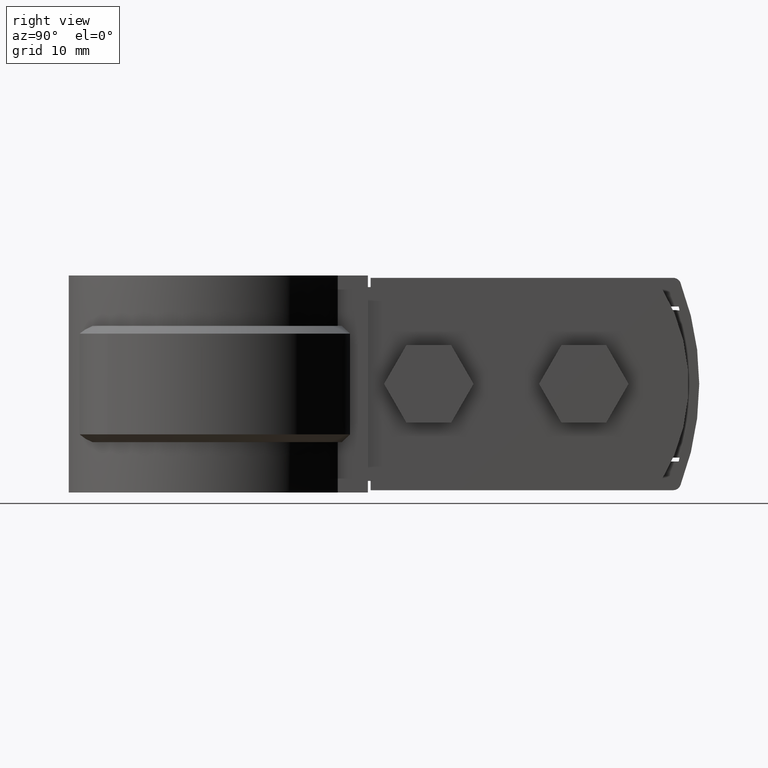
[diagram: clean part render]
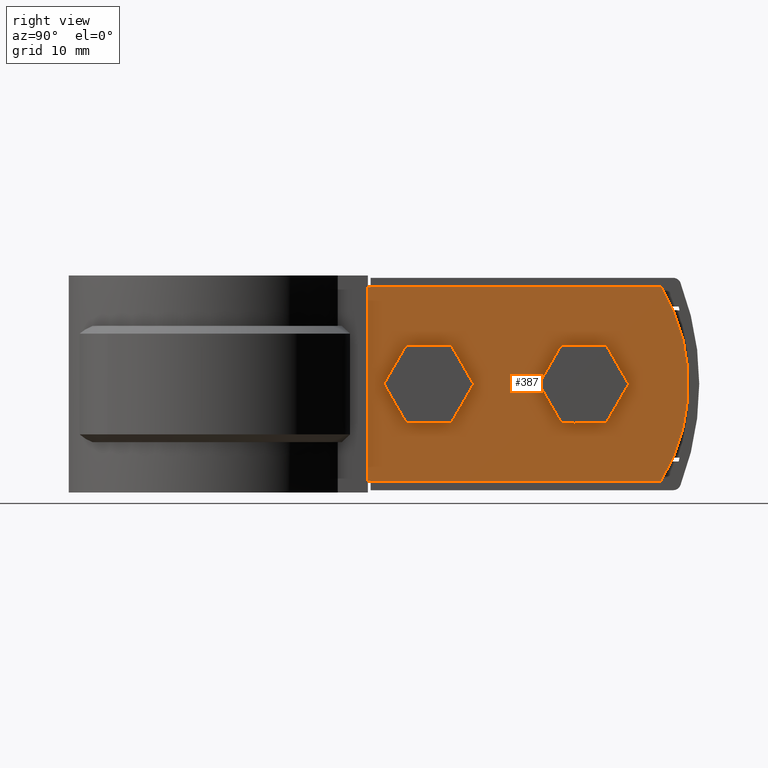
[diagram: same view with one face highlighted and labeled with its STEP entity id]
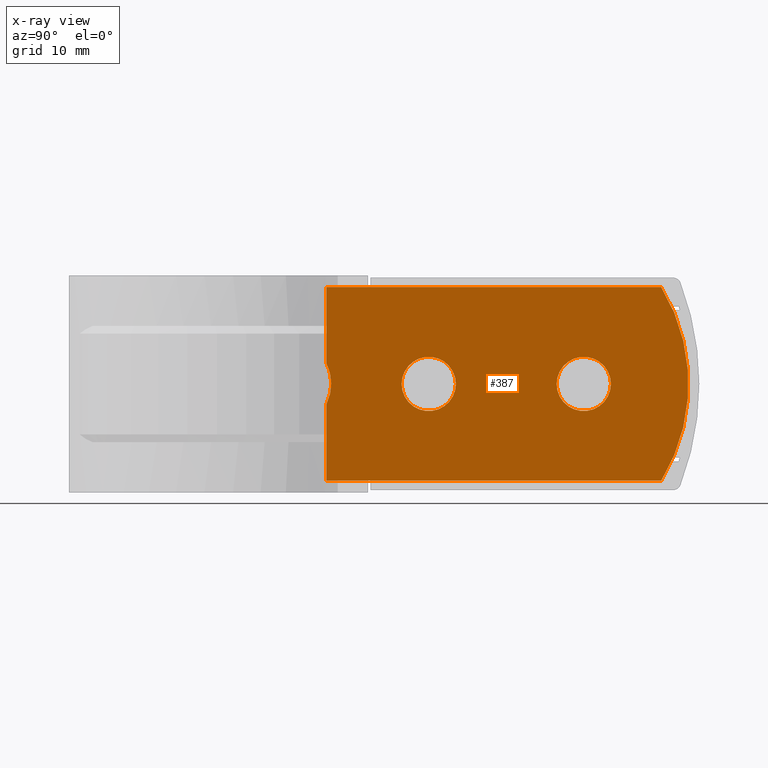
[diagram: x-ray of the same camera — body ghosted, the highlighted face saturated]
A machine part, right view. The second image highlights one B-rep face of the part: STEP entity #387.
The next image is the same camera in x-ray: the body ghosted, the highlighted face saturated — about 0% of this face is hidden behind the body in this view.
In plain terms, the highlighted planar face has unit normal (-1, 0, 0).
Its self-contained STEP definition (entity closure, byte-faithful):
#387 = ADVANCED_FACE( '', ( #754, #755, #756 ), #757, .F. );
#754 = FACE_OUTER_BOUND( '', #1578, .T. );
#755 = FACE_BOUND( '', #1579, .T. );
#756 = FACE_BOUND( '', #1580, .T. );
#757 = PLANE( '', #1581 );
#1578 = EDGE_LOOP( '', ( #3364, #3365, #3366, #3367, #3368, #3369 ) );
#1579 = EDGE_LOOP( '', ( #3370 ) );
#1580 = EDGE_LOOP( '', ( #3371 ) );
#1581 = AXIS2_PLACEMENT_3D( '', #3372, #3373, #3374 );
#3364 = ORIENTED_EDGE( '', *, *, #6265, .F. );
#3365 = ORIENTED_EDGE( '', *, *, #6325, .T. );
#3366 = ORIENTED_EDGE( '', *, *, #6220, .T. );
#3367 = ORIENTED_EDGE( '', *, *, #6216, .F. );
#3368 = ORIENTED_EDGE( '', *, *, #6268, .F. );
#3369 = ORIENTED_EDGE( '', *, *, #6326, .T. );
#3370 = ORIENTED_EDGE( '', *, *, #6327, .F. );
#3371 = ORIENTED_EDGE( '', *, *, #6328, .F. );
#3372 = CARTESIAN_POINT( '', ( 5.10000000000000, 15.3831076184235, 0.000000000000000 ) );
#3373 = DIRECTION( '', ( -1.00000000000000, 6.12303176911189E-017, 0.000000000000000 ) );
#3374 = DIRECTION( '', ( 0.000000000000000, 0.000000000000000, 1.00000000000000 ) );
#6216 = EDGE_CURVE( '', #7142, #7143, #7144, .T. );
#6220 = EDGE_CURVE( '', #7150, #7143, #7151, .T. );
#6265 = EDGE_CURVE( '', #7230, #7224, #7232, .T. );
#6268 = EDGE_CURVE( '', #7234, #7142, #7236, .F. );
#6325 = EDGE_CURVE( '', #7230, #7150, #7327, .T. );
#6326 = EDGE_CURVE( '', #7234, #7224, #7328, .T. );
#6327 = EDGE_CURVE( '', #7329, #7329, #7330, .F. );
#6328 = EDGE_CURVE( '', #7331, #7331, #7332, .F. );
#7142 = VERTEX_POINT( '', #8765 );
#7143 = VERTEX_POINT( '', #8766 );
#7144 = CIRCLE( '', #8767, 24.0000000000000 );
#7150 = VERTEX_POINT( '', #8775 );
#7151 = LINE( '', #8776, #8777 );
#7224 = VERTEX_POINT( '', #9042 );
#7230 = VERTEX_POINT( '', #9088 );
#7232 = B_SPLINE_CURVE_WITH_KNOTS( '', 3, ( #9103, #9104, #9105, #9106, #9107, #9108, #9109, #9110, #9111, #9112 ), .UNSPECIFIED., .F., .F., ( 4, 2, 2, 2, 4 ), ( 0.000000000000000, 0.00136972833482961, 0.00273945666965922, 0.00410918500448883, 0.00547891333931844 ), .UNSPECIFIED. );
#7234 = VERTEX_POINT( '', #9114 );
#7236 = LINE( '', #9116, #9117 );
#7327 = LINE( '', #9566, #9567 );
#7328 = LINE( '', #9568, #9569 );
#7329 = VERTEX_POINT( '', #9570 );
#7330 = CIRCLE( '', #9571, 3.50000000000000 );
#7331 = VERTEX_POINT( '', #9572 );
#7332 = CIRCLE( '', #9573, 3.50000000000000 );
#8765 = CARTESIAN_POINT( '', ( 5.10000000000000, 58.5920857961767, -8.09651263958199E-031 ) );
#8766 = CARTESIAN_POINT( '', ( 5.10000000000000, 58.5920857961767, -25.0000000000000 ) );
#8767 = AXIS2_PLACEMENT_3D( '', #12193, #12194, #12195 );
#8775 = CARTESIAN_POINT( '', ( 5.10000000000000, 15.3831076184235, -25.0000000000000 ) );
#8776 = CARTESIAN_POINT( '', ( 5.10000000000000, 15.3831076184235, -25.0000000000000 ) );
#8777 = VECTOR( '', #12201, 1000.00000000000 );
#9042 = CARTESIAN_POINT( '', ( 5.10000000000000, 15.3831076184235, -9.84439986604446 ) );
#9088 = CARTESIAN_POINT( '', ( 5.10000000000000, 15.3831076184235, -15.1556001339555 ) );
#9103 = CARTESIAN_POINT( '', ( 5.10000000000000, 15.3831076184235, -15.1556001339555 ) );
#9104 = CARTESIAN_POINT( '', ( 5.10000000000000, 15.5894396324820, -14.7411726003786 ) );
#9105 = CARTESIAN_POINT( '', ( 5.10000000000000, 15.7457538054947, -14.3115021692077 ) );
#9106 = CARTESIAN_POINT( '', ( 5.10000000000000, 15.9602605933104, -13.4222588394208 ) );
#9107 = CARTESIAN_POINT( '', ( 5.09999999999998, 16.0173587787112, -12.9580350666352 ) );
#9108 = CARTESIAN_POINT( '', ( 5.09999999999998, 16.0176066976479, -12.0450125939992 ) );
#9109 = CARTESIAN_POINT( '', ( 5.10000000000000, 15.9625813983814, -11.5897674915801 ) );
#9110 = CARTESIAN_POINT( '', ( 5.10000000000000, 15.7468416891247, -10.6906399166197 ) );
#9111 = CARTESIAN_POINT( '', ( 5.09999999999970, 15.5894183484999, -10.2587846497442 ) );
#9112 = CARTESIAN_POINT( '', ( 5.09999999999970, 15.3831076184236, -9.84439986604444 ) );
#9114 = CARTESIAN_POINT( '', ( 5.10000000000000, 15.3831076184235, 0.000000000000000 ) );
#9116 = CARTESIAN_POINT( '', ( 5.10000000000000, 15.3831076184235, 0.000000000000000 ) );
#9117 = VECTOR( '', #12262, 1000.00000000000 );
#9566 = CARTESIAN_POINT( '', ( 5.10000000000000, 15.3831076184235, 0.000000000000000 ) );
#9567 = VECTOR( '', #12318, 1000.00000000000 );
#9568 = CARTESIAN_POINT( '', ( 5.10000000000000, 15.3831076184235, 0.000000000000000 ) );
#9569 = VECTOR( '', #12319, 1000.00000000000 );
#9570 = CARTESIAN_POINT( '', ( 5.10000000000000, 25.1042845476287, -12.5000000000000 ) );
#9571 = AXIS2_PLACEMENT_3D( '', #12320, #12321, #12322 );
#9572 = CARTESIAN_POINT( '', ( 5.10000000000000, 45.1042845476287, -12.5000000000000 ) );
#9573 = AXIS2_PLACEMENT_3D( '', #12323, #12324, #12325 );
#12193 = CARTESIAN_POINT( '', ( 5.09999999999999, 38.1042845476288, -12.5000000000000 ) );
#12194 = DIRECTION( '', ( -1.00000000000000, 6.12303176911189E-017, 0.000000000000000 ) );
#12195 = DIRECTION( '', ( -6.12303176911189E-017, -1.00000000000000, 0.000000000000000 ) );
#12201 = DIRECTION( '', ( 6.12303176911189E-017, 1.00000000000000, 0.000000000000000 ) );
#12262 = DIRECTION( '', ( -6.12303176911189E-017, -1.00000000000000, 0.000000000000000 ) );
#12318 = DIRECTION( '', ( 0.000000000000000, 0.000000000000000, -1.00000000000000 ) );
#12319 = DIRECTION( '', ( 0.000000000000000, 0.000000000000000, -1.00000000000000 ) );
#12320 = CARTESIAN_POINT( '', ( 5.10000000000000, 28.6042845476287, -12.5000000000000 ) );
#12321 = DIRECTION( '', ( -1.00000000000000, 6.12303176911189E-017, 0.000000000000000 ) );
#12322 = DIRECTION( '', ( -6.12303176911189E-017, -1.00000000000000, 0.000000000000000 ) );
#12323 = CARTESIAN_POINT( '', ( 5.10000000000000, 48.6042845476287, -12.5000000000000 ) );
#12324 = DIRECTION( '', ( -1.00000000000000, 6.12303176911189E-017, 0.000000000000000 ) );
#12325 = DIRECTION( '', ( -6.12303176911189E-017, -1.00000000000000, 0.000000000000000 ) );